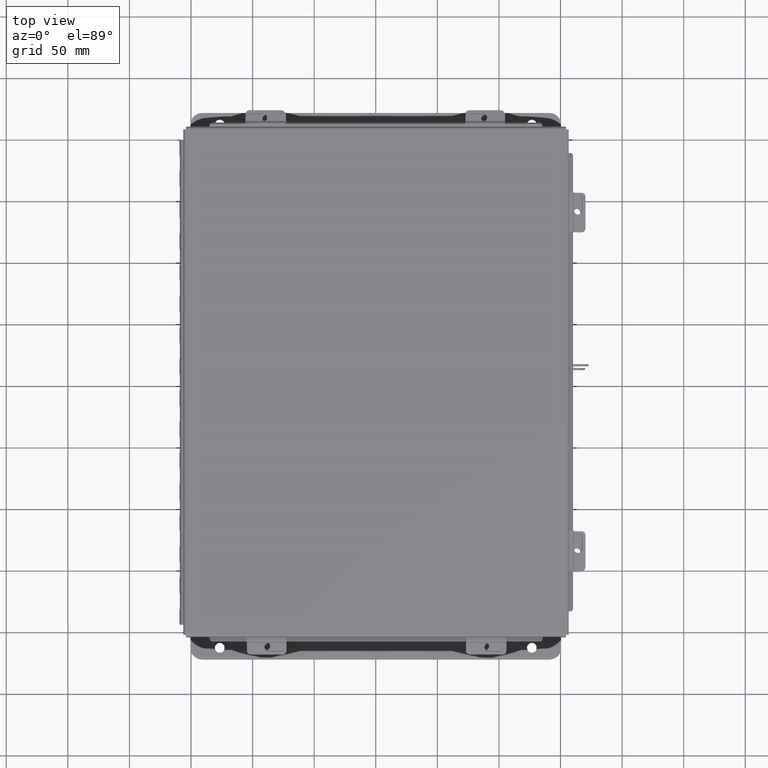
[diagram: clean part render]
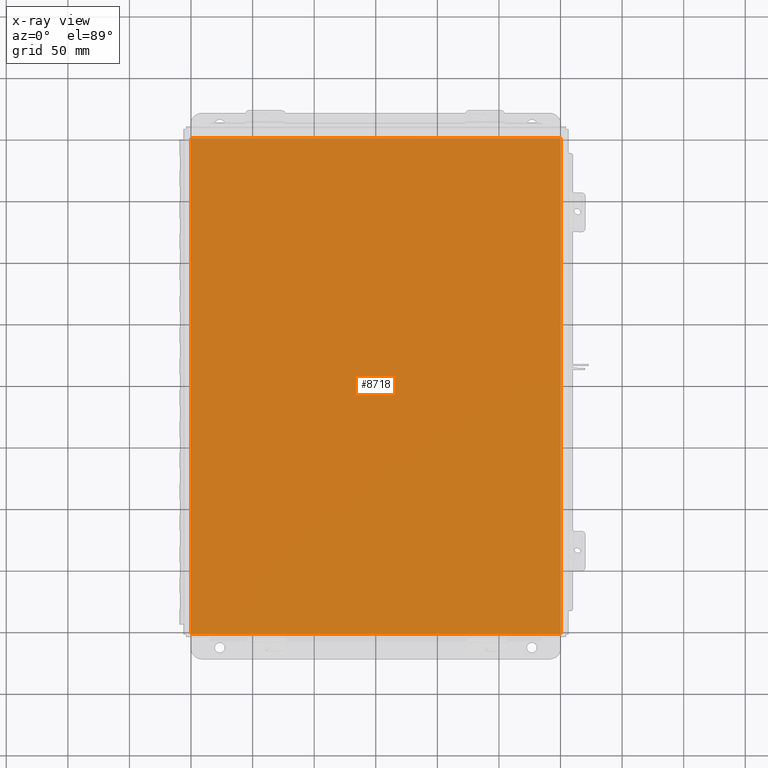
[diagram: x-ray — body ghosted, one internal face saturated and labeled with its STEP entity id]
A machine part, top view, then the same camera in x-ray: the body is ghosted and one INTERNAL B-rep face — a face not visible from any outside direction — is saturated and labeled: STEP entity #8718.
In plain terms, the highlighted planar face has unit normal (0, 0, -1).
Its self-contained STEP definition (entity closure, byte-faithful):
#145 = CARTESIAN_POINT ( 'NONE',  ( 5.912300000000000100, 7.925299999999997300, 4.268512490100411300E-017 ) ) ;
#370 = VERTEX_POINT ( 'NONE', #12945 ) ;
#1385 = ORIENTED_EDGE ( 'NONE', *, *, #8681, .F. ) ;
#2179 = EDGE_CURVE ( 'NONE', #7363, #370, #11717, .T. ) ;
#2326 = VERTEX_POINT ( 'NONE', #10701 ) ;
#2538 = AXIS2_PLACEMENT_3D ( 'NONE', #14676, #16212, #6894 ) ;
#3236 = FACE_OUTER_BOUND ( 'NONE', #4955, .T. ) ;
#3782 = LINE ( 'NONE', #6178, #12516 ) ;
#3790 = PLANE ( 'NONE',  #2538 ) ;
#4186 = VECTOR ( 'NONE', #16140, 39.37007874015748100 ) ;
#4955 = EDGE_LOOP ( 'NONE', ( #6859, #10278, #1385, #18351 ) ) ;
#5265 = CARTESIAN_POINT ( 'NONE',  ( -5.912300000000000100, -7.925300000000000900, 4.268512490100411300E-017 ) ) ;
#6178 = CARTESIAN_POINT ( 'NONE',  ( 5.912300000000000100, 7.925300000000000000, 4.268512490100411300E-017 ) ) ;
#6377 = LINE ( 'NONE', #18534, #13706 ) ;
#6859 = ORIENTED_EDGE ( 'NONE', *, *, #17175, .F. ) ;
#6894 = DIRECTION ( 'NONE',  ( -1.000000000000000000, 0.0000000000000000000, -0.0000000000000000000 ) ) ;
#7064 = CARTESIAN_POINT ( 'NONE',  ( -5.912300000000000100, -7.925300000000000000, 4.268512490100411300E-017 ) ) ;
#7363 = VERTEX_POINT ( 'NONE', #145 ) ;
#7523 = EDGE_CURVE ( 'NONE', #16328, #2326, #6377, .T. ) ;
#7577 = VECTOR ( 'NONE', #11670, 39.37007874015748100 ) ;
#7811 = LINE ( 'NONE', #5265, #4186 ) ;
#8681 = EDGE_CURVE ( 'NONE', #16328, #370, #7811, .T. ) ;
#8718 = ADVANCED_FACE ( 'NONE', ( #3236 ), #3790, .F. ) ;
#10278 = ORIENTED_EDGE ( 'NONE', *, *, #2179, .T. ) ;
#10701 = CARTESIAN_POINT ( 'NONE',  ( 5.912300000000000100, -7.925300000000000000, 4.268512490100411300E-017 ) ) ;
#11670 = DIRECTION ( 'NONE',  ( -1.000000000000000000, -0.0000000000000000000, -0.0000000000000000000 ) ) ;
#11717 = LINE ( 'NONE', #12556, #7577 ) ;
#12516 = VECTOR ( 'NONE', #15502, 39.37007874015748100 ) ;
#12556 = CARTESIAN_POINT ( 'NONE',  ( -6.000000000000000900, 7.925299999999998200, 0.0000000000000000000 ) ) ;
#12945 = CARTESIAN_POINT ( 'NONE',  ( -5.912300000000000100, 7.925299999999998200, 4.268512490100411300E-017 ) ) ;
#13706 = VECTOR ( 'NONE', #15287, 39.37007874015748100 ) ;
#14676 = CARTESIAN_POINT ( 'NONE',  ( 0.0000000000000000000, 0.0000000000000000000, 0.0000000000000000000 ) ) ;
#15287 = DIRECTION ( 'NONE',  ( 1.000000000000000000, 0.0000000000000000000, 0.0000000000000000000 ) ) ;
#15502 = DIRECTION ( 'NONE',  ( -0.0000000000000000000, -1.000000000000000000, -0.0000000000000000000 ) ) ;
#16140 = DIRECTION ( 'NONE',  ( -0.0000000000000000000, 1.000000000000000000, -0.0000000000000000000 ) ) ;
#16212 = DIRECTION ( 'NONE',  ( 0.0000000000000000000, 0.0000000000000000000, -1.000000000000000000 ) ) ;
#16328 = VERTEX_POINT ( 'NONE', #7064 ) ;
#17175 = EDGE_CURVE ( 'NONE', #7363, #2326, #3782, .T. ) ;
#18351 = ORIENTED_EDGE ( 'NONE', *, *, #7523, .T. ) ;
#18534 = CARTESIAN_POINT ( 'NONE',  ( -6.000000000000000900, -7.925300000000000000, 0.0000000000000000000 ) ) ;